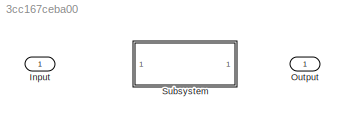
MODEL slx_3cc167ceba00
KIND model
CONFIG AbsTol = auto
CONFIG EnableMultiTasking = off
CONFIG FixedStep = auto
CONFIG MaxStep = auto
CONFIG MinStep = auto
CONFIG RelTol = 1e-3
CONFIG SampleTimeConstraint = Unconstrained
CONFIG SolverName = VariableStepAuto
CONFIG StartTime = 0.0
CONFIG StopTime = 10.0
BLOCK [Inport] Input
BLOCK [Outport] Output
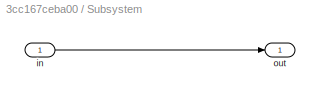
BLOCK [SubSystem] Subsystem
BLOCK [Inport] Subsystem/in
BLOCK [Outport] Subsystem/out
LINE Subsystem/in:1 -> Subsystem/out:1
